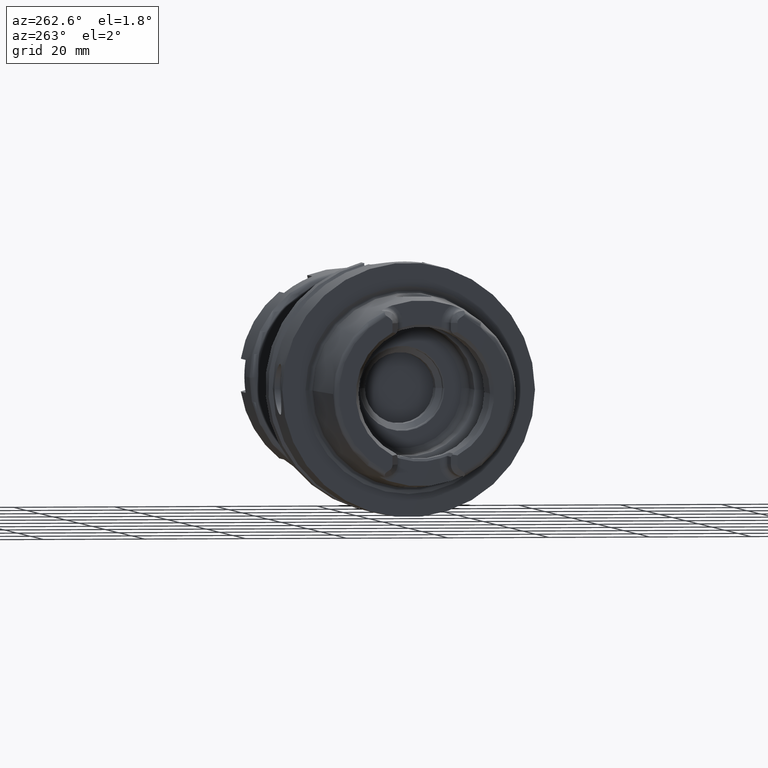
[diagram: clean part render]
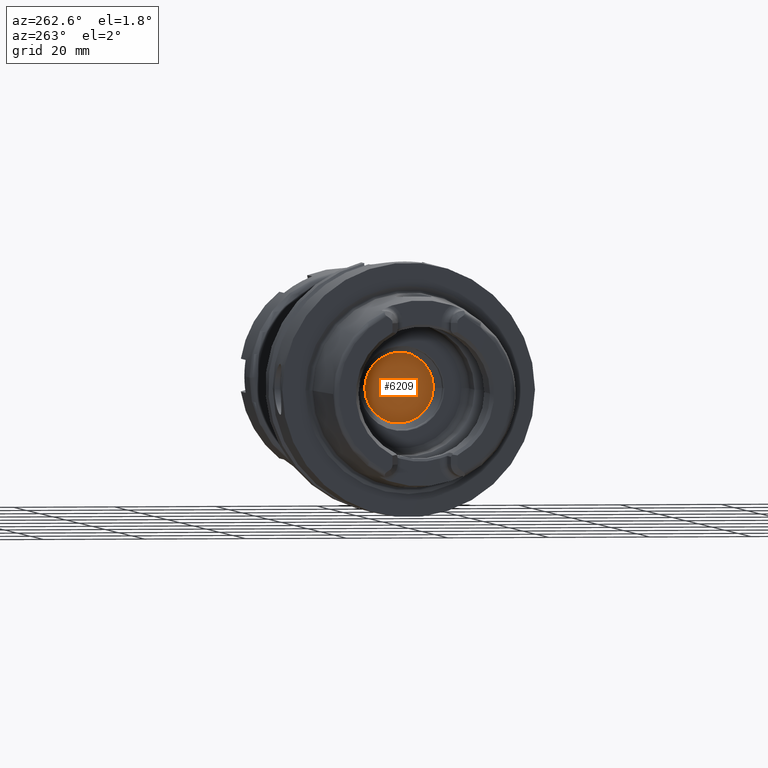
[diagram: same view with one face highlighted and labeled with its STEP entity id]
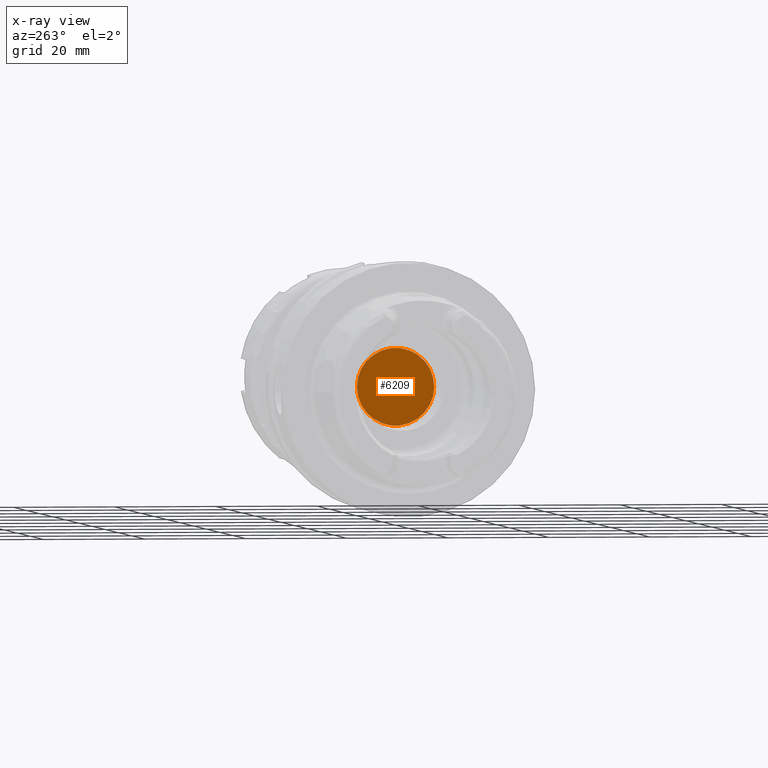
[diagram: x-ray of the same camera — body ghosted, the highlighted face saturated]
A machine part, auxiliary view. The second image highlights one B-rep face of the part: STEP entity #6209.
The next image is the same camera in x-ray: the body ghosted, the highlighted face saturated — about 1% of this face is hidden behind the body in this view.
In plain terms, the highlighted planar face has unit normal (1, 0, 0).
Its self-contained STEP definition (entity closure, byte-faithful):
#2485=CARTESIAN_POINT('',(1.995E1,0.E0,0.E0));
#2486=DIRECTION('',(1.E0,0.E0,0.E0));
#2487=DIRECTION('',(0.E0,1.E0,0.E0));
#2488=AXIS2_PLACEMENT_3D('',#2485,#2486,#2487);
#2490=CARTESIAN_POINT('',(1.995E1,0.E0,0.E0));
#2491=DIRECTION('',(1.E0,0.E0,0.E0));
#2492=DIRECTION('',(0.E0,-1.E0,0.E0));
#2493=AXIS2_PLACEMENT_3D('',#2490,#2491,#2492);
#3211=CARTESIAN_POINT('',(1.995E1,7.65E0,0.E0));
#3212=CARTESIAN_POINT('',(1.995E1,-7.65E0,0.E0));
#3213=VERTEX_POINT('',#3211);
#3214=VERTEX_POINT('',#3212);
#6199=CARTESIAN_POINT('',(1.995E1,0.E0,0.E0));
#6200=DIRECTION('',(1.E0,0.E0,0.E0));
#6201=DIRECTION('',(0.E0,-1.E0,0.E0));
#6202=AXIS2_PLACEMENT_3D('',#6199,#6200,#6201);
#6203=PLANE('',#6202);
#6204=ORIENTED_EDGE('',*,*,#6189,.T.);
#6206=ORIENTED_EDGE('',*,*,#6205,.T.);
#6207=EDGE_LOOP('',(#6204,#6206));
#6208=FACE_OUTER_BOUND('',#6207,.F.);
#6209=ADVANCED_FACE('',(#6208),#6203,.F.);
#2489=CIRCLE('',#2488,7.65E0);
#2494=CIRCLE('',#2493,7.65E0);
#6189=EDGE_CURVE('',#3213,#3214,#2489,.T.);
#6205=EDGE_CURVE('',#3214,#3213,#2494,.T.);